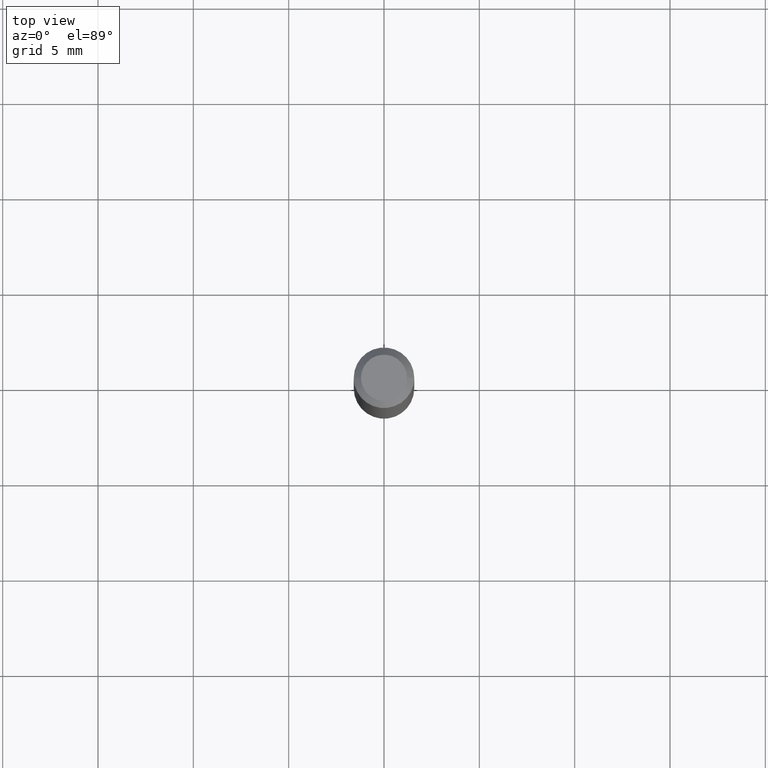
[diagram: clean part render]
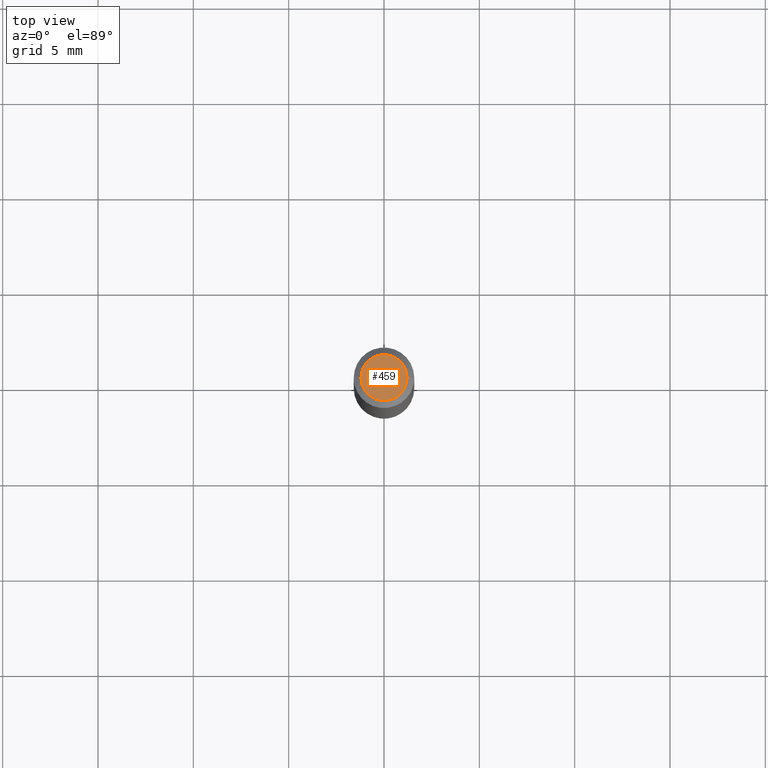
[diagram: same view with one face highlighted and labeled with its STEP entity id]
A machine part, top view. The second image highlights one B-rep face of the part: STEP entity #459.
In plain terms, the highlighted planar face has unit normal (0, -0, -1).
Its self-contained STEP definition (entity closure, byte-faithful):
#28 = DIRECTION ( 'NONE',  ( 1.000000000000000000, -6.982962677686266711E-15, 4.852736867747365086E-29 ) ) ;
#60 = EDGE_CURVE ( 'NONE', #348, #155, #420, .T. ) ;
#95 = CARTESIAN_POINT ( 'NONE',  ( 0.04750000000000000749, -4.035134999187568762E-16, 2.731847993664288856E-16 ) ) ;
#100 = EDGE_CURVE ( 'NONE', #155, #348, #149, .T. ) ;
#114 = FACE_OUTER_BOUND ( 'NONE', #279, .T. ) ;
#149 = CIRCLE ( 'NONE', #234, 0.04750000000000000749 ) ;
#155 = VERTEX_POINT ( 'NONE', #95 ) ;
#158 = DIRECTION ( 'NONE',  ( -2.445468806185136597E-29, 3.491481338843145583E-15, 1.000000000000000000 ) ) ;
#160 = PLANE ( 'NONE',  #280 ) ;
#180 = AXIS2_PLACEMENT_3D ( 'NONE', #195, #398, #28 ) ;
#195 = CARTESIAN_POINT ( 'NONE',  ( -6.680649051745406845E-45, 9.538196290434862081E-31, 2.731847993664263218E-16 ) ) ;
#199 = CARTESIAN_POINT ( 'NONE',  ( 3.316907271900976589E-16, 0.04750000000000000749, -2.925296391183627249E-17 ) ) ;
#234 = AXIS2_PLACEMENT_3D ( 'NONE', #356, #158, #259 ) ;
#259 = DIRECTION ( 'NONE',  ( 1.000000000000000000, -6.982962677686266711E-15, 4.852736867747365086E-29 ) ) ;
#276 = ORIENTED_EDGE ( 'NONE', *, *, #100, .T. ) ;
#279 = EDGE_LOOP ( 'NONE', ( #408, #276 ) ) ;
#280 = AXIS2_PLACEMENT_3D ( 'NONE', #199, #354, #402 ) ;
#348 = VERTEX_POINT ( 'NONE', #388 ) ;
#354 = DIRECTION ( 'NONE',  ( 2.438088387897960049E-29, -3.491481338843145188E-15, -1.000000000000000000 ) ) ;
#356 = CARTESIAN_POINT ( 'NONE',  ( -6.680649051745406845E-45, 9.538196290434862081E-31, 2.731847993664263218E-16 ) ) ;
#388 = CARTESIAN_POINT ( 'NONE',  ( -0.04750000000000000749, 3.578768372314221353E-16, 2.731847993664239060E-16 ) ) ;
#398 = DIRECTION ( 'NONE',  ( -2.445468806185136597E-29, 3.491481338843145583E-15, 1.000000000000000000 ) ) ;
#402 = DIRECTION ( 'NONE',  ( -1.000000000000000000, 6.982962677686265922E-15, -4.876176775795935793E-29 ) ) ;
#408 = ORIENTED_EDGE ( 'NONE', *, *, #60, .T. ) ;
#420 = CIRCLE ( 'NONE', #180, 0.04750000000000000749 ) ;
#459 = ADVANCED_FACE ( 'NONE', ( #114 ), #160, .F. ) ;